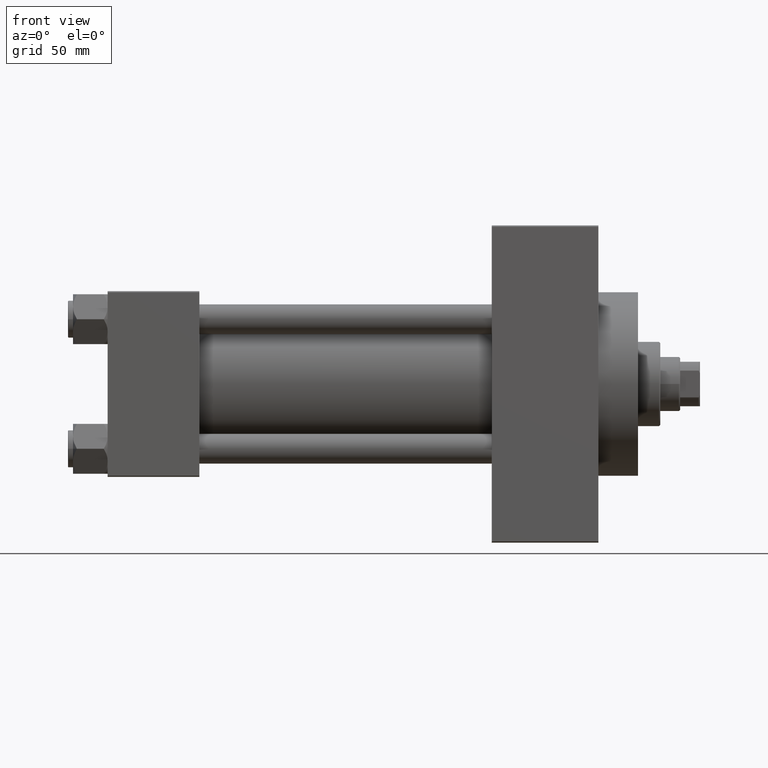
[diagram: clean part render]
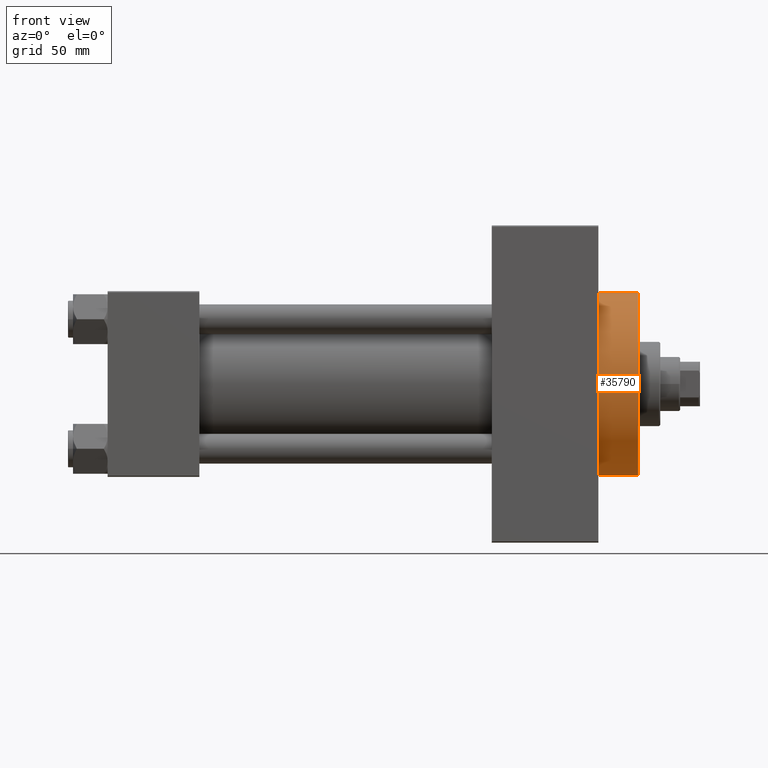
[diagram: same view with one face highlighted and labeled with its STEP entity id]
A machine part, front view. The second image highlights one B-rep face of the part: STEP entity #35790.
In plain terms, the highlighted cylindrical surface (partial cylindrical patch) has radius 37 mm, axis along (-1, -0, -0).
Its self-contained STEP definition (entity closure, byte-faithful):
#1855 = CARTESIAN_POINT ( 'NONE',  ( 198.0000000000000000, 4.531193156845206793E-15, -37.00000000000000000 ) ) ;
#2425 = ORIENTED_EDGE ( 'NONE', *, *, #13491, .F. ) ;
#3287 = EDGE_CURVE ( 'NONE', #16192, #3391, #39532, .T. ) ;
#3391 = VERTEX_POINT ( 'NONE', #36893 ) ;
#3517 = DIRECTION ( 'NONE',  ( -1.000000000000000000, -0.000000000000000000, -0.000000000000000000 ) ) ;
#3631 = DIRECTION ( 'NONE',  ( 1.000000000000000000, 0.000000000000000000, 0.000000000000000000 ) ) ;
#5054 = VECTOR ( 'NONE', #43352, 1000.000000000000000 ) ;
#5149 = ORIENTED_EDGE ( 'NONE', *, *, #11559, .T. ) ;
#6265 = AXIS2_PLACEMENT_3D ( 'NONE', #14427, #32419, #24996 ) ;
#10077 = DIRECTION ( 'NONE',  ( -1.000000000000000000, -0.000000000000000000, -0.000000000000000000 ) ) ;
#10270 = EDGE_LOOP ( 'NONE', ( #18342, #2425, #42750, #5149 ) ) ;
#11201 = CYLINDRICAL_SURFACE ( 'NONE', #36287, 37.00000000000000000 ) ;
#11559 = EDGE_CURVE ( 'NONE', #3391, #13761, #26971, .T. ) ;
#13491 = EDGE_CURVE ( 'NONE', #16192, #46516, #15542, .T. ) ;
#13761 = VERTEX_POINT ( 'NONE', #1855 ) ;
#14427 = CARTESIAN_POINT ( 'NONE',  ( 198.0000000000000000, 0.000000000000000000, 0.000000000000000000 ) ) ;
#15542 = CIRCLE ( 'NONE', #38498, 37.00000000000000000 ) ;
#16192 = VERTEX_POINT ( 'NONE', #42889 ) ;
#18342 = ORIENTED_EDGE ( 'NONE', *, *, #19904, .F. ) ;
#18877 = CARTESIAN_POINT ( 'NONE',  ( 214.0000000000000284, 0.000000000000000000, 0.000000000000000000 ) ) ;
#19904 = EDGE_CURVE ( 'NONE', #46516, #13761, #24982, .T. ) ;
#24712 = DIRECTION ( 'NONE',  ( 0.000000000000000000, 0.000000000000000000, -1.000000000000000000 ) ) ;
#24982 = LINE ( 'NONE', #43168, #29566 ) ;
#24996 = DIRECTION ( 'NONE',  ( 0.000000000000000000, 0.000000000000000000, -1.000000000000000000 ) ) ;
#26971 = CIRCLE ( 'NONE', #6265, 37.00000000000000000 ) ;
#28384 = CARTESIAN_POINT ( 'NONE',  ( 214.0000000000000284, 4.531193156845206793E-15, -37.00000000000000000 ) ) ;
#29207 = DIRECTION ( 'NONE',  ( 0.000000000000000000, 0.000000000000000000, 1.000000000000000000 ) ) ;
#29566 = VECTOR ( 'NONE', #10077, 1000.000000000000000 ) ;
#32419 = DIRECTION ( 'NONE',  ( 1.000000000000000000, 0.000000000000000000, 0.000000000000000000 ) ) ;
#35211 = CARTESIAN_POINT ( 'NONE',  ( 214.0000000000000284, 0.000000000000000000, 37.00000000000000000 ) ) ;
#35790 = ADVANCED_FACE ( 'NONE', ( #40226 ), #11201, .T. ) ;
#36287 = AXIS2_PLACEMENT_3D ( 'NONE', #18877, #3517, #29207 ) ;
#36518 = CARTESIAN_POINT ( 'NONE',  ( 214.0000000000000284, 0.000000000000000000, 0.000000000000000000 ) ) ;
#36893 = CARTESIAN_POINT ( 'NONE',  ( 198.0000000000000000, 0.000000000000000000, 37.00000000000000000 ) ) ;
#38498 = AXIS2_PLACEMENT_3D ( 'NONE', #36518, #3631, #24712 ) ;
#39532 = LINE ( 'NONE', #35211, #5054 ) ;
#40226 = FACE_OUTER_BOUND ( 'NONE', #10270, .T. ) ;
#42750 = ORIENTED_EDGE ( 'NONE', *, *, #3287, .T. ) ;
#42889 = CARTESIAN_POINT ( 'NONE',  ( 214.0000000000000284, 0.000000000000000000, 37.00000000000000000 ) ) ;
#43168 = CARTESIAN_POINT ( 'NONE',  ( 214.0000000000000284, 4.531193156845206793E-15, -37.00000000000000000 ) ) ;
#43352 = DIRECTION ( 'NONE',  ( -1.000000000000000000, -0.000000000000000000, -0.000000000000000000 ) ) ;
#46516 = VERTEX_POINT ( 'NONE', #28384 ) ;